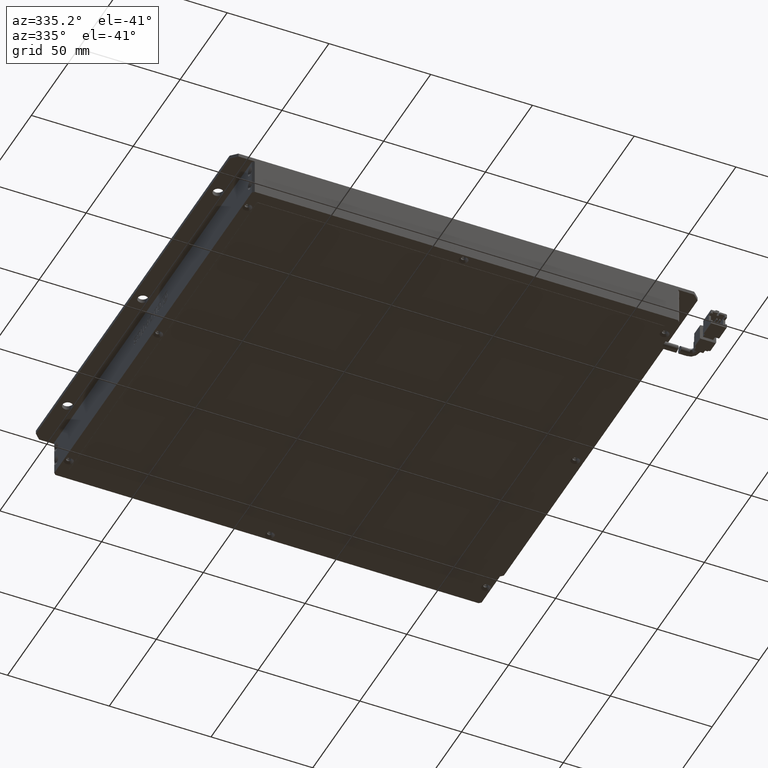
[diagram: clean part render]
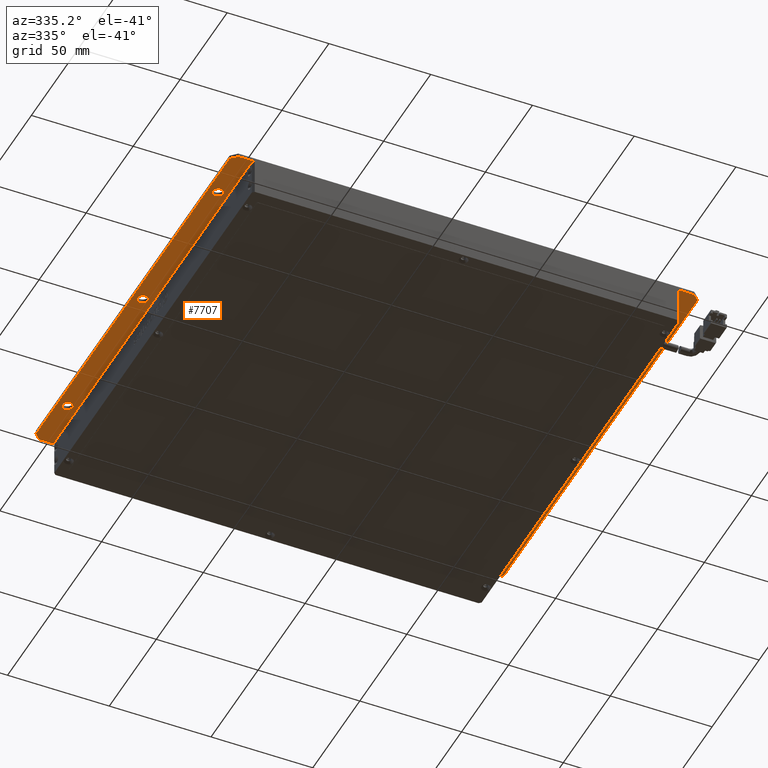
[diagram: same view with one face highlighted and labeled with its STEP entity id]
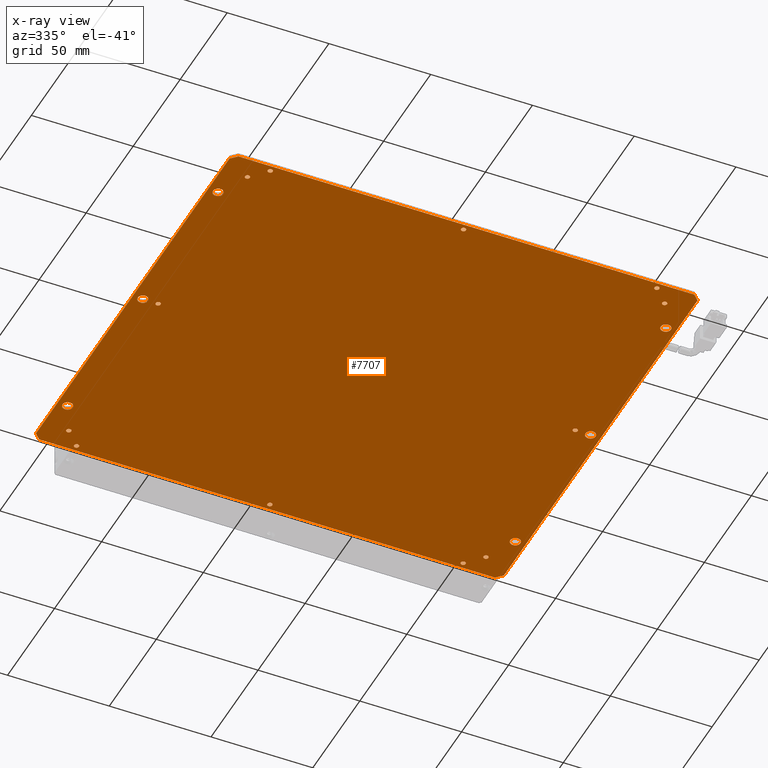
[diagram: x-ray of the same camera — body ghosted, the highlighted face saturated]
A machine part, auxiliary view. The second image highlights one B-rep face of the part: STEP entity #7707.
The next image is the same camera in x-ray: the body ghosted, the highlighted face saturated — about 0% of this face is hidden behind the body in this view.
In plain terms, the highlighted planar face has unit normal (0, -0, 1).
Its self-contained STEP definition (entity closure, byte-faithful):
#10 = VERTEX_POINT ( 'NONE', #6533 ) ;
#33 = ORIENTED_EDGE ( 'NONE', *, *, #4350, .F. ) ;
#70 = DIRECTION ( 'NONE',  ( 1.000000000000000000, 0.0000000000000000000, 0.0000000000000000000 ) ) ;
#94 = CIRCLE ( 'NONE', #3011, 1.200000000000006600 ) ;
#108 = CARTESIAN_POINT ( 'NONE',  ( -83.83424941752387800, -33.37875398278082900, -2.364644938190885200E-011 ) ) ;
#157 = DIRECTION ( 'NONE',  ( 0.0000000000000000000, 0.0000000000000000000, -1.000000000000000000 ) ) ;
#298 = FACE_BOUND ( 'NONE', #15271, .T. ) ;
#315 = CARTESIAN_POINT ( 'NONE',  ( -76.33424941752390700, -136.3787539827808100, -2.364644938190885200E-011 ) ) ;
#396 = ORIENTED_EDGE ( 'NONE', *, *, #17289, .F. ) ;
#415 = VERTEX_POINT ( 'NONE', #15167 ) ;
#418 = AXIS2_PLACEMENT_3D ( 'NONE', #9436, #21502, #11183 ) ;
#429 = EDGE_CURVE ( 'NONE', #18746, #20441, #21924, .T. ) ;
#433 = LINE ( 'NONE', #15159, #18309 ) ;
#441 = CARTESIAN_POINT ( 'NONE',  ( 133.6657505824760800, 72.62124601721916400, -2.364688306277784600E-011 ) ) ;
#462 = VERTEX_POINT ( 'NONE', #20274 ) ;
#574 = ORIENTED_EDGE ( 'NONE', *, *, #8481, .F. ) ;
#712 = VERTEX_POINT ( 'NONE', #819 ) ;
#765 = AXIS2_PLACEMENT_3D ( 'NONE', #8959, #21026, #10701 ) ;
#810 = VERTEX_POINT ( 'NONE', #5798 ) ;
#819 = CARTESIAN_POINT ( 'NONE',  ( 133.6657505824761400, -136.3787539827808100, -2.364753358408133700E-011 ) ) ;
#850 = CARTESIAN_POINT ( 'NONE',  ( -93.83424941752386400, -33.37875398278082900, -2.364688306277784600E-011 ) ) ;
#853 = FACE_OUTER_BOUND ( 'NONE', #13161, .T. ) ;
#941 = CARTESIAN_POINT ( 'NONE',  ( -76.33424941752390700, -136.3787539827808100, -2.364644938190885200E-011 ) ) ;
#945 = EDGE_CURVE ( 'NONE', #20982, #1541, #12476, .T. ) ;
#1104 = AXIS2_PLACEMENT_3D ( 'NONE', #3975, #2583, #2436 ) ;
#1111 = EDGE_CURVE ( 'NONE', #1541, #20982, #2944, .T. ) ;
#1220 = CARTESIAN_POINT ( 'NONE',  ( 121.1657505824761100, -128.3787539827808100, -2.364644938190885200E-011 ) ) ;
#1367 = AXIS2_PLACEMENT_3D ( 'NONE', #8718, #8963, #9031 ) ;
#1388 = CARTESIAN_POINT ( 'NONE',  ( -96.33424941752389300, 72.62124601721916400, -2.364688306277784600E-011 ) ) ;
#1541 = VERTEX_POINT ( 'NONE', #18598 ) ;
#1585 = AXIS2_PLACEMENT_3D ( 'NONE', #5328, #4863, #4468 ) ;
#1692 = DIRECTION ( 'NONE',  ( 1.000000000000000000, 0.0000000000000000000, 0.0000000000000000000 ) ) ;
#1715 = CIRCLE ( 'NONE', #19790, 1.199999999999992600 ) ;
#1731 = CARTESIAN_POINT ( 'NONE',  ( 133.6657505824761400, 72.62124601721916400, -2.364688306277784600E-011 ) ) ;
#1751 = CARTESIAN_POINT ( 'NONE',  ( 128.6657505824760500, 46.62124601721915000, -2.364688306277784600E-011 ) ) ;
#1780 = ORIENTED_EDGE ( 'NONE', *, *, #9634, .F. ) ;
#1798 = EDGE_CURVE ( 'NONE', #3124, #462, #4821, .T. ) ;
#1872 = DIRECTION ( 'NONE',  ( 1.000000000000000000, 0.0000000000000000000, 0.0000000000000000000 ) ) ;
#1968 = VERTEX_POINT ( 'NONE', #17401 ) ;
#2045 = DIRECTION ( 'NONE',  ( 0.0000000000000000000, 0.0000000000000000000, -1.000000000000000000 ) ) ;
#2049 = EDGE_CURVE ( 'NONE', #11515, #9138, #18052, .T. ) ;
#2087 = CARTESIAN_POINT ( 'NONE',  ( -93.33424941752387800, 72.62124601721916400, -2.364688306277784600E-011 ) ) ;
#2180 = EDGE_CURVE ( 'NONE', #21657, #19202, #18319, .T. ) ;
#2182 = DIRECTION ( 'NONE',  ( 1.000000000000000000, 0.0000000000000000000, -0.0000000000000000000 ) ) ;
#2292 = DIRECTION ( 'NONE',  ( 1.000000000000000000, 0.0000000000000000000, 0.0000000000000000000 ) ) ;
#2304 = CARTESIAN_POINT ( 'NONE',  ( 17.46575058247609700, -136.3787539827808600, -2.364644938190885200E-011 ) ) ;
#2327 = CARTESIAN_POINT ( 'NONE',  ( 133.6657505824760800, -139.3787539827808400, -2.364688306277784600E-011 ) ) ;
#2335 = ORIENTED_EDGE ( 'NONE', *, *, #5938, .F. ) ;
#2361 = DIRECTION ( 'NONE',  ( 0.0000000000000000000, 0.0000000000000000000, -1.000000000000000000 ) ) ;
#2436 = DIRECTION ( 'NONE',  ( 1.000000000000000000, 0.0000000000000000000, 0.0000000000000000000 ) ) ;
#2473 = EDGE_CURVE ( 'NONE', #4483, #21816, #11793, .T. ) ;
#2490 = AXIS2_PLACEMENT_3D ( 'NONE', #441, #12594, #2182 ) ;
#2499 = AXIS2_PLACEMENT_3D ( 'NONE', #108, #12303, #1872 ) ;
#2535 = CARTESIAN_POINT ( 'NONE',  ( 18.66575058247609000, -136.3787539827808600, -2.364644938190885200E-011 ) ) ;
#2583 = DIRECTION ( 'NONE',  ( 0.0000000000000000000, 0.0000000000000000000, -1.000000000000000000 ) ) ;
#2616 = CARTESIAN_POINT ( 'NONE',  ( 114.8657505824760800, 69.62124601721916400, -2.364644938190885200E-011 ) ) ;
#2664 = DIRECTION ( 'NONE',  ( 1.000000000000000000, 0.0000000000000000000, 0.0000000000000000000 ) ) ;
#2675 = EDGE_CURVE ( 'NONE', #17094, #18552, #20100, .T. ) ;
#2939 = DIRECTION ( 'NONE',  ( 1.000000000000000000, 0.0000000000000000000, 0.0000000000000000000 ) ) ;
#2943 = DIRECTION ( 'NONE',  ( 0.0000000000000000000, 0.0000000000000000000, -1.000000000000000000 ) ) ;
#2944 = CIRCLE ( 'NONE', #21566, 1.199999999999992600 ) ;
#3011 = AXIS2_PLACEMENT_3D ( 'NONE', #16987, #6628, #18745 ) ;
#3100 = EDGE_CURVE ( 'NONE', #6520, #18080, #11182, .T. ) ;
#3124 = VERTEX_POINT ( 'NONE', #2616 ) ;
#3166 = VERTEX_POINT ( 'NONE', #7115 ) ;
#3179 = CIRCLE ( 'NONE', #4276, 1.200000000000006600 ) ;
#3240 = CIRCLE ( 'NONE', #418, 1.200000000000006600 ) ;
#3304 = EDGE_CURVE ( 'NONE', #6352, #8873, #14693, .T. ) ;
#3445 = EDGE_CURVE ( 'NONE', #8106, #11884, #4059, .T. ) ;
#3497 = DIRECTION ( 'NONE',  ( 1.000000000000000000, 0.0000000000000000000, 0.0000000000000000000 ) ) ;
#3516 = CARTESIAN_POINT ( 'NONE',  ( 119.9657505824760500, 61.62124601721919200, -2.364644938190885200E-011 ) ) ;
#3537 = AXIS2_PLACEMENT_3D ( 'NONE', #315, #157, #70 ) ;
#3686 = VERTEX_POINT ( 'NONE', #11639 ) ;
#3755 = CIRCLE ( 'NONE', #5010, 1.199999999999992600 ) ;
#3823 = EDGE_CURVE ( 'NONE', #4505, #5966, #18675, .T. ) ;
#3836 = FACE_BOUND ( 'NONE', #19124, .T. ) ;
#3896 = CIRCLE ( 'NONE', #6179, 1.200000000000006600 ) ;
#3975 = CARTESIAN_POINT ( 'NONE',  ( 128.6657505824760500, -33.37875398278082900, -2.364688306277784600E-011 ) ) ;
#4006 = CIRCLE ( 'NONE', #9508, 1.200000000000006600 ) ;
#4059 = CIRCLE ( 'NONE', #5612, 1.200000000000006600 ) ;
#4101 = CARTESIAN_POINT ( 'NONE',  ( 126.1657505824760600, 46.62124601721915000, -2.364688306277784600E-011 ) ) ;
#4276 = AXIS2_PLACEMENT_3D ( 'NONE', #18028, #7668, #19753 ) ;
#4328 = DIRECTION ( 'NONE',  ( 0.0000000000000000000, 0.0000000000000000000, -1.000000000000000000 ) ) ;
#4350 = EDGE_CURVE ( 'NONE', #415, #5333, #20013, .T. ) ;
#4372 = FACE_BOUND ( 'NONE', #16969, .T. ) ;
#4448 = CARTESIAN_POINT ( 'NONE',  ( 114.8657505824761700, -136.3787539827808900, -2.364644938190885200E-011 ) ) ;
#4468 = DIRECTION ( 'NONE',  ( 1.000000000000000000, 0.0000000000000000000, 0.0000000000000000000 ) ) ;
#4483 = VERTEX_POINT ( 'NONE', #18728 ) ;
#4505 = VERTEX_POINT ( 'NONE', #8507 ) ;
#4596 = VERTEX_POINT ( 'NONE', #3516 ) ;
#4636 = AXIS2_PLACEMENT_3D ( 'NONE', #13967, #13892, #13811 ) ;
#4737 = LINE ( 'NONE', #2327, #13423 ) ;
#4821 = CIRCLE ( 'NONE', #1585, 1.200000000000006600 ) ;
#4863 = DIRECTION ( 'NONE',  ( 0.0000000000000000000, 0.0000000000000000000, -1.000000000000000000 ) ) ;
#4929 = FACE_BOUND ( 'NONE', #14467, .T. ) ;
#4970 = DIRECTION ( 'NONE',  ( 0.0000000000000000000, 0.0000000000000000000, -1.000000000000000000 ) ) ;
#4973 = AXIS2_PLACEMENT_3D ( 'NONE', #14735, #4328, #16439 ) ;
#5010 = AXIS2_PLACEMENT_3D ( 'NONE', #941, #13070, #2664 ) ;
#5107 = ORIENTED_EDGE ( 'NONE', *, *, #7905, .F. ) ;
#5198 = CARTESIAN_POINT ( 'NONE',  ( -96.33424941752389300, -136.3787539827808100, -2.364688306277784600E-011 ) ) ;
#5314 = CARTESIAN_POINT ( 'NONE',  ( 19.86575058247608200, -136.3787539827808600, -2.364644938190885200E-011 ) ) ;
#5328 = CARTESIAN_POINT ( 'NONE',  ( 113.6657505824760800, 69.62124601721916400, -2.364644938190885200E-011 ) ) ;
#5333 = VERTEX_POINT ( 'NONE', #10529 ) ;
#5354 = ORIENTED_EDGE ( 'NONE', *, *, #9306, .F. ) ;
#5358 = VERTEX_POINT ( 'NONE', #20849 ) ;
#5460 = EDGE_CURVE ( 'NONE', #7280, #3686, #12705, .T. ) ;
#5470 = AXIS2_PLACEMENT_3D ( 'NONE', #9991, #22047, #11747 ) ;
#5490 = CARTESIAN_POINT ( 'NONE',  ( 130.6657505824760500, 72.62124601721916400, -2.364753358408133700E-011 ) ) ;
#5597 = AXIS2_PLACEMENT_3D ( 'NONE', #20005, #9702, #21769 ) ;
#5612 = AXIS2_PLACEMENT_3D ( 'NONE', #11597, #13231, #9903 ) ;
#5653 = EDGE_CURVE ( 'NONE', #21107, #10, #18262, .T. ) ;
#5677 = AXIS2_PLACEMENT_3D ( 'NONE', #1751, #13916, #3497 ) ;
#5703 = ORIENTED_EDGE ( 'NONE', *, *, #22422, .F. ) ;
#5761 = LINE ( 'NONE', #1731, #14975 ) ;
#5798 = CARTESIAN_POINT ( 'NONE',  ( 130.6657505824761100, -139.3787539827808400, -2.364720832342959200E-011 ) ) ;
#5865 = ORIENTED_EDGE ( 'NONE', *, *, #3100, .F. ) ;
#5938 = EDGE_CURVE ( 'NONE', #1968, #4596, #3896, .T. ) ;
#5966 = VERTEX_POINT ( 'NONE', #6906 ) ;
#6005 = CARTESIAN_POINT ( 'NONE',  ( -88.83424941752387800, 46.62124601721917800, -2.364688306277784600E-011 ) ) ;
#6078 = CARTESIAN_POINT ( 'NONE',  ( -93.33424941752387800, 72.62124601721916400, -2.364753358408133700E-011 ) ) ;
#6101 = DIRECTION ( 'NONE',  ( 0.0000000000000000000, 0.0000000000000000000, -1.000000000000000000 ) ) ;
#6175 = CIRCLE ( 'NONE', #2499, 1.200000000000006600 ) ;
#6179 = AXIS2_PLACEMENT_3D ( 'NONE', #22403, #12109, #1692 ) ;
#6352 = VERTEX_POINT ( 'NONE', #13704 ) ;
#6426 = ORIENTED_EDGE ( 'NONE', *, *, #6881, .F. ) ;
#6437 = ORIENTED_EDGE ( 'NONE', *, *, #11648, .F. ) ;
#6474 = ORIENTED_EDGE ( 'NONE', *, *, #1111, .F. ) ;
#6520 = VERTEX_POINT ( 'NONE', #2304 ) ;
#6533 = CARTESIAN_POINT ( 'NONE',  ( 119.9657505824761000, -33.37875398278082900, -2.364644938190885200E-011 ) ) ;
#6615 = VERTEX_POINT ( 'NONE', #15947 ) ;
#6628 = DIRECTION ( 'NONE',  ( 0.0000000000000000000, 0.0000000000000000000, -1.000000000000000000 ) ) ;
#6671 = EDGE_LOOP ( 'NONE', ( #12432, #8066 ) ) ;
#6869 = AXIS2_PLACEMENT_3D ( 'NONE', #2535, #2361, #2292 ) ;
#6881 = EDGE_CURVE ( 'NONE', #11884, #8106, #15754, .T. ) ;
#6900 = DIRECTION ( 'NONE',  ( 0.7071067811865474600, -0.7071067811865474600, 0.0000000000000000000 ) ) ;
#6906 = CARTESIAN_POINT ( 'NONE',  ( -75.13424941752391800, -136.3787539827808100, -2.364644938190885200E-011 ) ) ;
#6933 = DIRECTION ( 'NONE',  ( 1.000000000000000000, 0.0000000000000000000, 0.0000000000000000000 ) ) ;
#6944 = EDGE_LOOP ( 'NONE', ( #11406, #11596 ) ) ;
#7010 = VERTEX_POINT ( 'NONE', #15296 ) ;
#7111 = DIRECTION ( 'NONE',  ( 0.0000000000000000000, 0.0000000000000000000, -1.000000000000000000 ) ) ;
#7115 = CARTESIAN_POINT ( 'NONE',  ( -93.33424941752387800, -139.3787539827808400, -2.364688306277784600E-011 ) ) ;
#7128 = LINE ( 'NONE', #1388, #16853 ) ;
#7179 = DIRECTION ( 'NONE',  ( 0.0000000000000000000, 0.0000000000000000000, -1.000000000000000000 ) ) ;
#7192 = CARTESIAN_POINT ( 'NONE',  ( 113.6657505824760800, 69.62124601721916400, -2.364644938190885200E-011 ) ) ;
#7211 = CARTESIAN_POINT ( 'NONE',  ( -83.83424941752389300, 61.62124601721919200, -2.364644938190885200E-011 ) ) ;
#7215 = ORIENTED_EDGE ( 'NONE', *, *, #2049, .F. ) ;
#7257 = EDGE_CURVE ( 'NONE', #18080, #6520, #21743, .T. ) ;
#7260 = ORIENTED_EDGE ( 'NONE', *, *, #20694, .F. ) ;
#7280 = VERTEX_POINT ( 'NONE', #6078 ) ;
#7377 = AXIS2_PLACEMENT_3D ( 'NONE', #19756, #9441, #21508 ) ;
#7393 = CARTESIAN_POINT ( 'NONE',  ( -75.13424941752391800, 69.62124601721916400, -2.364644938190885200E-011 ) ) ;
#7518 = ORIENTED_EDGE ( 'NONE', *, *, #3304, .F. ) ;
#7569 = EDGE_CURVE ( 'NONE', #712, #21657, #5761, .T. ) ;
#7668 = DIRECTION ( 'NONE',  ( 0.0000000000000000000, 0.0000000000000000000, -1.000000000000000000 ) ) ;
#7707 = ADVANCED_FACE ( 'NONE', ( #853, #10074, #15215, #18735, #14187, #9552, #4929, #298, #18183, #13611, #9016, #4372, #22220, #17644, #13055, #8442, #3836, #21696, #17085 ), #15997, .F. ) ;
#7778 = CIRCLE ( 'NONE', #9340, 2.500000000000002200 ) ;
#7852 = CARTESIAN_POINT ( 'NONE',  ( 113.6657505824761600, -136.3787539827808900, -2.364644938190885200E-011 ) ) ;
#7905 = EDGE_CURVE ( 'NONE', #6615, #5358, #11439, .T. ) ;
#8066 = ORIENTED_EDGE ( 'NONE', *, *, #12306, .F. ) ;
#8068 = ORIENTED_EDGE ( 'NONE', *, *, #16078, .F. ) ;
#8080 = VERTEX_POINT ( 'NONE', #13696 ) ;
#8096 = AXIS2_PLACEMENT_3D ( 'NONE', #12499, #12635, #12707 ) ;
#8106 = VERTEX_POINT ( 'NONE', #15417 ) ;
#8233 = CARTESIAN_POINT ( 'NONE',  ( 119.9657505824761000, -128.3787539827808100, -2.364644938190885200E-011 ) ) ;
#8284 = CARTESIAN_POINT ( 'NONE',  ( 130.6657505824761100, -139.3787539827808400, -2.364688306277784600E-011 ) ) ;
#8395 = EDGE_CURVE ( 'NONE', #5966, #4505, #3755, .T. ) ;
#8442 = FACE_BOUND ( 'NONE', #18780, .T. ) ;
#8473 = VECTOR ( 'NONE', #6900, 1000.000000000000100 ) ;
#8481 = EDGE_CURVE ( 'NONE', #5333, #415, #16188, .T. ) ;
#8507 = CARTESIAN_POINT ( 'NONE',  ( -77.53424941752391000, -136.3787539827808100, -2.364644938190885200E-011 ) ) ;
#8518 = CARTESIAN_POINT ( 'NONE',  ( -82.63424941752390400, 61.62124601721919200, -2.364644938190885200E-011 ) ) ;
#8629 = DIRECTION ( 'NONE',  ( 0.0000000000000000000, 0.0000000000000000000, -1.000000000000000000 ) ) ;
#8640 = ORIENTED_EDGE ( 'NONE', *, *, #22205, .F. ) ;
#8659 = ORIENTED_EDGE ( 'NONE', *, *, #2180, .F. ) ;
#8678 = ORIENTED_EDGE ( 'NONE', *, *, #17143, .F. ) ;
#8686 = DIRECTION ( 'NONE',  ( 0.0000000000000000000, 0.0000000000000000000, -1.000000000000000000 ) ) ;
#8718 = CARTESIAN_POINT ( 'NONE',  ( -91.33424941752386400, -113.3787539827808200, -2.364688306277784600E-011 ) ) ;
#8779 = CIRCLE ( 'NONE', #5677, 2.500000000000002200 ) ;
#8849 = ORIENTED_EDGE ( 'NONE', *, *, #2675, .F. ) ;
#8873 = VERTEX_POINT ( 'NONE', #20661 ) ;
#8916 = ORIENTED_EDGE ( 'NONE', *, *, #5460, .F. ) ;
#8957 = DIRECTION ( 'NONE',  ( 1.000000000000000000, 0.0000000000000000000, 0.0000000000000000000 ) ) ;
#8959 = CARTESIAN_POINT ( 'NONE',  ( -83.83424941752387800, -128.3787539827808100, -2.364644938190885200E-011 ) ) ;
#8963 = DIRECTION ( 'NONE',  ( 0.0000000000000000000, 0.0000000000000000000, -1.000000000000000000 ) ) ;
#9016 = FACE_BOUND ( 'NONE', #16355, .T. ) ;
#9031 = DIRECTION ( 'NONE',  ( 1.000000000000000000, 0.0000000000000000000, 0.0000000000000000000 ) ) ;
#9109 = DIRECTION ( 'NONE',  ( -0.7071067811865474600, 0.7071067811865474600, 0.0000000000000000000 ) ) ;
#9114 = ORIENTED_EDGE ( 'NONE', *, *, #11986, .F. ) ;
#9138 = VERTEX_POINT ( 'NONE', #850 ) ;
#9159 = ORIENTED_EDGE ( 'NONE', *, *, #2473, .F. ) ;
#9261 = EDGE_CURVE ( 'NONE', #19490, #8080, #11868, .T. ) ;
#9304 = DIRECTION ( 'NONE',  ( 0.0000000000000000000, 0.0000000000000000000, -1.000000000000000000 ) ) ;
#9306 = EDGE_CURVE ( 'NONE', #19202, #7280, #433, .T. ) ;
#9340 = AXIS2_PLACEMENT_3D ( 'NONE', #17465, #7111, #19217 ) ;
#9436 = CARTESIAN_POINT ( 'NONE',  ( 121.1657505824760500, 61.62124601721919200, -2.364644938190885200E-011 ) ) ;
#9441 = DIRECTION ( 'NONE',  ( 0.0000000000000000000, 0.0000000000000000000, -1.000000000000000000 ) ) ;
#9460 = ORIENTED_EDGE ( 'NONE', *, *, #14184, .F. ) ;
#9468 = CARTESIAN_POINT ( 'NONE',  ( 131.1657505824760800, 46.62124601721915000, -2.364688306277784600E-011 ) ) ;
#9479 = ORIENTED_EDGE ( 'NONE', *, *, #945, .F. ) ;
#9508 = AXIS2_PLACEMENT_3D ( 'NONE', #7192, #19288, #8957 ) ;
#9525 = CARTESIAN_POINT ( 'NONE',  ( 17.46575058247609700, 69.62124601721916400, -2.364644938190885200E-011 ) ) ;
#9552 = FACE_BOUND ( 'NONE', #13936, .T. ) ;
#9607 = DIRECTION ( 'NONE',  ( 1.000000000000000000, 0.0000000000000000000, 0.0000000000000000000 ) ) ;
#9634 = EDGE_CURVE ( 'NONE', #3166, #810, #4737, .T. ) ;
#9697 = CARTESIAN_POINT ( 'NONE',  ( 18.66575058247609000, 69.62124601721916400, -2.364644938190885200E-011 ) ) ;
#9702 = DIRECTION ( 'NONE',  ( 0.0000000000000000000, 0.0000000000000000000, -1.000000000000000000 ) ) ;
#9725 = ORIENTED_EDGE ( 'NONE', *, *, #21092, .F. ) ;
#9751 = AXIS2_PLACEMENT_3D ( 'NONE', #18982, #8629, #20693 ) ;
#9808 = AXIS2_PLACEMENT_3D ( 'NONE', #15331, #4970, #17059 ) ;
#9903 = DIRECTION ( 'NONE',  ( 1.000000000000000000, 0.0000000000000000000, 0.0000000000000000000 ) ) ;
#9942 = CARTESIAN_POINT ( 'NONE',  ( 133.6657505824760800, 69.62124601721916400, -2.364688306277784600E-011 ) ) ;
#9950 = ORIENTED_EDGE ( 'NONE', *, *, #19677, .F. ) ;
#9953 = EDGE_CURVE ( 'NONE', #20441, #18746, #8779, .T. ) ;
#9991 = CARTESIAN_POINT ( 'NONE',  ( 18.66575058247609000, 69.62124601721916400, -2.364644938190885200E-011 ) ) ;
#10074 = FACE_BOUND ( 'NONE', #20203, .T. ) ;
#10174 = CARTESIAN_POINT ( 'NONE',  ( -88.83424941752386400, -33.37875398278082900, -2.364688306277784600E-011 ) ) ;
#10506 = ORIENTED_EDGE ( 'NONE', *, *, #3823, .F. ) ;
#10513 = AXIS2_PLACEMENT_3D ( 'NONE', #7211, #7179, #6933 ) ;
#10528 = ORIENTED_EDGE ( 'NONE', *, *, #13416, .F. ) ;
#10529 = CARTESIAN_POINT ( 'NONE',  ( 131.1657505824760800, -33.37875398278082900, -2.364688306277784600E-011 ) ) ;
#10573 = ORIENTED_EDGE ( 'NONE', *, *, #1798, .F. ) ;
#10701 = DIRECTION ( 'NONE',  ( 1.000000000000000000, 0.0000000000000000000, 0.0000000000000000000 ) ) ;
#10753 = DIRECTION ( 'NONE',  ( -0.7071067811865474600, -0.7071067811865474600, 0.0000000000000000000 ) ) ;
#10766 = ORIENTED_EDGE ( 'NONE', *, *, #14223, .F. ) ;
#10835 = ORIENTED_EDGE ( 'NONE', *, *, #8395, .F. ) ;
#11039 = AXIS2_PLACEMENT_3D ( 'NONE', #12471, #2045, #14218 ) ;
#11182 = CIRCLE ( 'NONE', #6869, 1.199999999999992600 ) ;
#11183 = DIRECTION ( 'NONE',  ( 1.000000000000000000, 0.0000000000000000000, 0.0000000000000000000 ) ) ;
#11194 = CIRCLE ( 'NONE', #16094, 1.200000000000006600 ) ;
#11248 = EDGE_CURVE ( 'NONE', #18552, #17094, #16364, .T. ) ;
#11339 = ORIENTED_EDGE ( 'NONE', *, *, #11248, .F. ) ;
#11364 = ORIENTED_EDGE ( 'NONE', *, *, #7257, .F. ) ;
#11406 = ORIENTED_EDGE ( 'NONE', *, *, #9261, .F. ) ;
#11439 = CIRCLE ( 'NONE', #5597, 2.500000000000002200 ) ;
#11453 = DIRECTION ( 'NONE',  ( 1.000000000000000000, 0.0000000000000000000, 0.0000000000000000000 ) ) ;
#11515 = VERTEX_POINT ( 'NONE', #10174 ) ;
#11596 = ORIENTED_EDGE ( 'NONE', *, *, #18349, .F. ) ;
#11597 = CARTESIAN_POINT ( 'NONE',  ( 121.1657505824761100, -128.3787539827808100, -2.364644938190885200E-011 ) ) ;
#11598 = ORIENTED_EDGE ( 'NONE', *, *, #3445, .F. ) ;
#11639 = CARTESIAN_POINT ( 'NONE',  ( -96.33424941752389300, 69.62124601721916400, -2.364753358408133700E-011 ) ) ;
#11648 = EDGE_CURVE ( 'NONE', #8873, #6352, #17493, .T. ) ;
#11664 = ORIENTED_EDGE ( 'NONE', *, *, #18785, .F. ) ;
#11747 = DIRECTION ( 'NONE',  ( 1.000000000000000000, 0.0000000000000000000, 0.0000000000000000000 ) ) ;
#11793 = CIRCLE ( 'NONE', #13247, 1.200000000000006600 ) ;
#11803 = CIRCLE ( 'NONE', #9751, 2.500000000000002200 ) ;
#11868 = CIRCLE ( 'NONE', #22116, 1.200000000000006600 ) ;
#11884 = VERTEX_POINT ( 'NONE', #8233 ) ;
#11986 = EDGE_CURVE ( 'NONE', #15337, #13199, #11803, .T. ) ;
#12109 = DIRECTION ( 'NONE',  ( 0.0000000000000000000, 0.0000000000000000000, -1.000000000000000000 ) ) ;
#12176 = VECTOR ( 'NONE', #10753, 1000.000000000000100 ) ;
#12303 = DIRECTION ( 'NONE',  ( 0.0000000000000000000, 0.0000000000000000000, -1.000000000000000000 ) ) ;
#12306 = EDGE_CURVE ( 'NONE', #10, #21107, #94, .T. ) ;
#12432 = ORIENTED_EDGE ( 'NONE', *, *, #5653, .F. ) ;
#12471 = CARTESIAN_POINT ( 'NONE',  ( -91.33424941752386400, -113.3787539827808200, -2.364688306277784600E-011 ) ) ;
#12476 = CIRCLE ( 'NONE', #8096, 1.199999999999992600 ) ;
#12499 = CARTESIAN_POINT ( 'NONE',  ( -76.33424941752390700, 69.62124601721916400, -2.364644938190885200E-011 ) ) ;
#12562 = CARTESIAN_POINT ( 'NONE',  ( -82.63424941752387600, -33.37875398278082900, -2.364644938190885200E-011 ) ) ;
#12594 = DIRECTION ( 'NONE',  ( 0.0000000000000000000, -0.0000000000000000000, 1.000000000000000000 ) ) ;
#12635 = DIRECTION ( 'NONE',  ( 0.0000000000000000000, 0.0000000000000000000, -1.000000000000000000 ) ) ;
#12705 = LINE ( 'NONE', #2087, #12176 ) ;
#12707 = DIRECTION ( 'NONE',  ( 1.000000000000000000, 0.0000000000000000000, 0.0000000000000000000 ) ) ;
#12808 = ORIENTED_EDGE ( 'NONE', *, *, #9953, .F. ) ;
#12813 = AXIS2_PLACEMENT_3D ( 'NONE', #1220, #13348, #2939 ) ;
#13035 = CARTESIAN_POINT ( 'NONE',  ( -85.03424941752388100, -128.3787539827808100, -2.364644938190885200E-011 ) ) ;
#13055 = FACE_BOUND ( 'NONE', #18214, .T. ) ;
#13070 = DIRECTION ( 'NONE',  ( 0.0000000000000000000, 0.0000000000000000000, -1.000000000000000000 ) ) ;
#13081 = LINE ( 'NONE', #5198, #8473 ) ;
#13161 = EDGE_LOOP ( 'NONE', ( #8659, #20480, #16685, #1780, #396, #8678, #8916, #5354 ) ) ;
#13187 = VECTOR ( 'NONE', #9109, 1000.000000000000100 ) ;
#13199 = VERTEX_POINT ( 'NONE', #21718 ) ;
#13231 = DIRECTION ( 'NONE',  ( 0.0000000000000000000, 0.0000000000000000000, -1.000000000000000000 ) ) ;
#13247 = AXIS2_PLACEMENT_3D ( 'NONE', #20234, #20148, #20080 ) ;
#13348 = DIRECTION ( 'NONE',  ( 0.0000000000000000000, 0.0000000000000000000, -1.000000000000000000 ) ) ;
#13355 = CARTESIAN_POINT ( 'NONE',  ( 113.6657505824761600, -136.3787539827808900, -2.364644938190885200E-011 ) ) ;
#13416 = EDGE_CURVE ( 'NONE', #21816, #4483, #17324, .T. ) ;
#13423 = VECTOR ( 'NONE', #16203, 1000.000000000000000 ) ;
#13524 = DIRECTION ( 'NONE',  ( -0.0000000000000000000, -1.000000000000000000, -0.0000000000000000000 ) ) ;
#13611 = FACE_BOUND ( 'NONE', #16690, .T. ) ;
#13696 = CARTESIAN_POINT ( 'NONE',  ( 112.4657505824761500, -136.3787539827808900, -2.364644938190885200E-011 ) ) ;
#13704 = CARTESIAN_POINT ( 'NONE',  ( -93.83424941752386400, -113.3787539827808200, -2.364688306277784600E-011 ) ) ;
#13811 = DIRECTION ( 'NONE',  ( 1.000000000000000000, 0.0000000000000000000, 0.0000000000000000000 ) ) ;
#13875 = CARTESIAN_POINT ( 'NONE',  ( -85.03424941752388100, -33.37875398278082900, -2.364644938190885200E-011 ) ) ;
#13886 = DIRECTION ( 'NONE',  ( 0.0000000000000000000, 1.000000000000000000, 0.0000000000000000000 ) ) ;
#13892 = DIRECTION ( 'NONE',  ( 0.0000000000000000000, 0.0000000000000000000, -1.000000000000000000 ) ) ;
#13916 = DIRECTION ( 'NONE',  ( 0.0000000000000000000, 0.0000000000000000000, -1.000000000000000000 ) ) ;
#13936 = EDGE_LOOP ( 'NONE', ( #11364, #5865 ) ) ;
#13967 = CARTESIAN_POINT ( 'NONE',  ( -91.33424941752386400, -33.37875398278082900, -2.364688306277784600E-011 ) ) ;
#14073 = AXIS2_PLACEMENT_3D ( 'NONE', #14219, #16536, #16600 ) ;
#14184 = EDGE_CURVE ( 'NONE', #19625, #21002, #6175, .T. ) ;
#14187 = FACE_BOUND ( 'NONE', #6944, .T. ) ;
#14188 = ORIENTED_EDGE ( 'NONE', *, *, #429, .F. ) ;
#14192 = EDGE_LOOP ( 'NONE', ( #2335, #11664 ) ) ;
#14218 = DIRECTION ( 'NONE',  ( 1.000000000000000000, 0.0000000000000000000, 0.0000000000000000000 ) ) ;
#14219 = CARTESIAN_POINT ( 'NONE',  ( 128.6657505824760500, 46.62124601721915000, -2.364688306277784600E-011 ) ) ;
#14223 = EDGE_CURVE ( 'NONE', #462, #3124, #4006, .T. ) ;
#14395 = CARTESIAN_POINT ( 'NONE',  ( 19.86575058247608200, 69.62124601721916400, -2.364644938190885200E-011 ) ) ;
#14467 = EDGE_LOOP ( 'NONE', ( #10835, #10506 ) ) ;
#14603 = CARTESIAN_POINT ( 'NONE',  ( 122.3657505824761200, -33.37875398278082900, -2.364644938190885200E-011 ) ) ;
#14693 = CIRCLE ( 'NONE', #1367, 2.500000000000002200 ) ;
#14735 = CARTESIAN_POINT ( 'NONE',  ( 18.66575058247609000, -136.3787539827808600, -2.364644938190885200E-011 ) ) ;
#14975 = VECTOR ( 'NONE', #13886, 1000.000000000000000 ) ;
#15088 = DIRECTION ( 'NONE',  ( 1.000000000000000000, 0.0000000000000000000, 0.0000000000000000000 ) ) ;
#15159 = CARTESIAN_POINT ( 'NONE',  ( 133.6657505824760800, 72.62124601721916400, -2.364688306277784600E-011 ) ) ;
#15167 = CARTESIAN_POINT ( 'NONE',  ( 126.1657505824760600, -33.37875398278082900, -2.364688306277784600E-011 ) ) ;
#15215 = FACE_BOUND ( 'NONE', #6671, .T. ) ;
#15271 = EDGE_LOOP ( 'NONE', ( #9159, #10528 ) ) ;
#15296 = CARTESIAN_POINT ( 'NONE',  ( -96.33424941752389300, -136.3787539827808400, -2.364688306277784600E-011 ) ) ;
#15331 = CARTESIAN_POINT ( 'NONE',  ( 128.6657505824760500, -113.3787539827808200, -2.364688306277784600E-011 ) ) ;
#15337 = VERTEX_POINT ( 'NONE', #6005 ) ;
#15417 = CARTESIAN_POINT ( 'NONE',  ( 122.3657505824761200, -128.3787539827808100, -2.364644938190885200E-011 ) ) ;
#15532 = LINE ( 'NONE', #8284, #20084 ) ;
#15559 = CIRCLE ( 'NONE', #16640, 2.500000000000002200 ) ;
#15754 = CIRCLE ( 'NONE', #12813, 1.200000000000006600 ) ;
#15947 = CARTESIAN_POINT ( 'NONE',  ( 131.1657505824760800, -113.3787539827808200, -2.364688306277784600E-011 ) ) ;
#15997 = PLANE ( 'NONE',  #2490 ) ;
#16078 = EDGE_CURVE ( 'NONE', #16984, #21006, #17748, .T. ) ;
#16089 = EDGE_LOOP ( 'NONE', ( #9725, #9460 ) ) ;
#16094 = AXIS2_PLACEMENT_3D ( 'NONE', #7852, #19922, #9607 ) ;
#16188 = CIRCLE ( 'NONE', #22375, 2.500000000000002200 ) ;
#16203 = DIRECTION ( 'NONE',  ( 1.000000000000000000, 0.0000000000000000000, -0.0000000000000000000 ) ) ;
#16355 = EDGE_LOOP ( 'NONE', ( #9479, #6474 ) ) ;
#16364 = CIRCLE ( 'NONE', #7377, 1.199999999999992600 ) ;
#16439 = DIRECTION ( 'NONE',  ( 1.000000000000000000, 0.0000000000000000000, 0.0000000000000000000 ) ) ;
#16471 = CARTESIAN_POINT ( 'NONE',  ( 121.1657505824761100, -33.37875398278082900, -2.364644938190885200E-011 ) ) ;
#16536 = DIRECTION ( 'NONE',  ( 0.0000000000000000000, 0.0000000000000000000, -1.000000000000000000 ) ) ;
#16600 = DIRECTION ( 'NONE',  ( 1.000000000000000000, 0.0000000000000000000, 0.0000000000000000000 ) ) ;
#16640 = AXIS2_PLACEMENT_3D ( 'NONE', #19037, #8686, #20748 ) ;
#16685 = ORIENTED_EDGE ( 'NONE', *, *, #16701, .F. ) ;
#16690 = EDGE_LOOP ( 'NONE', ( #11339, #8849 ) ) ;
#16701 = EDGE_CURVE ( 'NONE', #810, #712, #15532, .T. ) ;
#16853 = VECTOR ( 'NONE', #13524, 1000.000000000000000 ) ;
#16969 = EDGE_LOOP ( 'NONE', ( #10573, #10766 ) ) ;
#16984 = VERTEX_POINT ( 'NONE', #9525 ) ;
#16987 = CARTESIAN_POINT ( 'NONE',  ( 121.1657505824761100, -33.37875398278082900, -2.364644938190885200E-011 ) ) ;
#17059 = DIRECTION ( 'NONE',  ( 1.000000000000000000, 0.0000000000000000000, 0.0000000000000000000 ) ) ;
#17085 = FACE_BOUND ( 'NONE', #19407, .T. ) ;
#17094 = VERTEX_POINT ( 'NONE', #20049 ) ;
#17143 = EDGE_CURVE ( 'NONE', #3686, #7010, #7128, .T. ) ;
#17289 = EDGE_CURVE ( 'NONE', #7010, #3166, #13081, .T. ) ;
#17324 = CIRCLE ( 'NONE', #765, 1.200000000000006600 ) ;
#17401 = CARTESIAN_POINT ( 'NONE',  ( 122.3657505824760700, 61.62124601721919200, -2.364644938190885200E-011 ) ) ;
#17465 = CARTESIAN_POINT ( 'NONE',  ( -91.33424941752386400, -33.37875398278082900, -2.364688306277784600E-011 ) ) ;
#17478 = AXIS2_PLACEMENT_3D ( 'NONE', #16471, #6101, #18203 ) ;
#17492 = EDGE_LOOP ( 'NONE', ( #8640, #8068 ) ) ;
#17493 = CIRCLE ( 'NONE', #11039, 2.500000000000002200 ) ;
#17639 = CARTESIAN_POINT ( 'NONE',  ( 133.6657505824761100, 69.62124601721913600, -2.364720832342959200E-011 ) ) ;
#17644 = FACE_BOUND ( 'NONE', #18270, .T. ) ;
#17748 = CIRCLE ( 'NONE', #5470, 1.199999999999992600 ) ;
#18028 = CARTESIAN_POINT ( 'NONE',  ( -83.83424941752387800, -33.37875398278082900, -2.364644938190885200E-011 ) ) ;
#18052 = CIRCLE ( 'NONE', #4636, 2.500000000000002200 ) ;
#18080 = VERTEX_POINT ( 'NONE', #5314 ) ;
#18183 = FACE_BOUND ( 'NONE', #16089, .T. ) ;
#18203 = DIRECTION ( 'NONE',  ( 1.000000000000000000, 0.0000000000000000000, 0.0000000000000000000 ) ) ;
#18214 = EDGE_LOOP ( 'NONE', ( #7215, #9950 ) ) ;
#18262 = CIRCLE ( 'NONE', #17478, 1.200000000000006600 ) ;
#18270 = EDGE_LOOP ( 'NONE', ( #9114, #5703 ) ) ;
#18309 = VECTOR ( 'NONE', #20340, 1000.000000000000000 ) ;
#18319 = LINE ( 'NONE', #9942, #13187 ) ;
#18349 = EDGE_CURVE ( 'NONE', #8080, #19490, #11194, .T. ) ;
#18552 = VERTEX_POINT ( 'NONE', #8518 ) ;
#18598 = CARTESIAN_POINT ( 'NONE',  ( -77.53424941752391000, 69.62124601721916400, -2.364644938190885200E-011 ) ) ;
#18667 = DIRECTION ( 'NONE',  ( 0.7071067811865474600, 0.7071067811865474600, 0.0000000000000000000 ) ) ;
#18675 = CIRCLE ( 'NONE', #3537, 1.199999999999992600 ) ;
#18728 = CARTESIAN_POINT ( 'NONE',  ( -82.63424941752387600, -128.3787539827808100, -2.364644938190885200E-011 ) ) ;
#18735 = FACE_BOUND ( 'NONE', #14192, .T. ) ;
#18745 = DIRECTION ( 'NONE',  ( 1.000000000000000000, 0.0000000000000000000, 0.0000000000000000000 ) ) ;
#18746 = VERTEX_POINT ( 'NONE', #4101 ) ;
#18780 = EDGE_LOOP ( 'NONE', ( #6437, #7518 ) ) ;
#18785 = EDGE_CURVE ( 'NONE', #4596, #1968, #3240, .T. ) ;
#18982 = CARTESIAN_POINT ( 'NONE',  ( -91.33424941752387800, 46.62124601721917800, -2.364688306277784600E-011 ) ) ;
#19037 = CARTESIAN_POINT ( 'NONE',  ( -91.33424941752387800, 46.62124601721917800, -2.364688306277784600E-011 ) ) ;
#19124 = EDGE_LOOP ( 'NONE', ( #5107, #7260 ) ) ;
#19202 = VERTEX_POINT ( 'NONE', #5490 ) ;
#19217 = DIRECTION ( 'NONE',  ( 1.000000000000000000, 0.0000000000000000000, 0.0000000000000000000 ) ) ;
#19288 = DIRECTION ( 'NONE',  ( 0.0000000000000000000, 0.0000000000000000000, -1.000000000000000000 ) ) ;
#19407 = EDGE_LOOP ( 'NONE', ( #12808, #14188 ) ) ;
#19490 = VERTEX_POINT ( 'NONE', #4448 ) ;
#19623 = CARTESIAN_POINT ( 'NONE',  ( 128.6657505824760500, -33.37875398278082900, -2.364688306277784600E-011 ) ) ;
#19625 = VERTEX_POINT ( 'NONE', #13875 ) ;
#19629 = EDGE_LOOP ( 'NONE', ( #574, #33 ) ) ;
#19677 = EDGE_CURVE ( 'NONE', #9138, #11515, #7778, .T. ) ;
#19753 = DIRECTION ( 'NONE',  ( 1.000000000000000000, 0.0000000000000000000, 0.0000000000000000000 ) ) ;
#19756 = CARTESIAN_POINT ( 'NONE',  ( -83.83424941752389300, 61.62124601721919200, -2.364644938190885200E-011 ) ) ;
#19790 = AXIS2_PLACEMENT_3D ( 'NONE', #9697, #21763, #11453 ) ;
#19922 = DIRECTION ( 'NONE',  ( 0.0000000000000000000, 0.0000000000000000000, -1.000000000000000000 ) ) ;
#20005 = CARTESIAN_POINT ( 'NONE',  ( 128.6657505824760500, -113.3787539827808200, -2.364688306277784600E-011 ) ) ;
#20013 = CIRCLE ( 'NONE', #1104, 2.500000000000002200 ) ;
#20049 = CARTESIAN_POINT ( 'NONE',  ( -85.03424941752388100, 61.62124601721919200, -2.364644938190885200E-011 ) ) ;
#20080 = DIRECTION ( 'NONE',  ( 1.000000000000000000, 0.0000000000000000000, 0.0000000000000000000 ) ) ;
#20084 = VECTOR ( 'NONE', #18667, 1000.000000000000100 ) ;
#20100 = CIRCLE ( 'NONE', #10513, 1.199999999999992600 ) ;
#20148 = DIRECTION ( 'NONE',  ( 0.0000000000000000000, 0.0000000000000000000, -1.000000000000000000 ) ) ;
#20203 = EDGE_LOOP ( 'NONE', ( #11598, #6426 ) ) ;
#20234 = CARTESIAN_POINT ( 'NONE',  ( -83.83424941752387800, -128.3787539827808100, -2.364644938190885200E-011 ) ) ;
#20274 = CARTESIAN_POINT ( 'NONE',  ( 112.4657505824760800, 69.62124601721916400, -2.364644938190885200E-011 ) ) ;
#20340 = DIRECTION ( 'NONE',  ( -1.000000000000000000, -0.0000000000000000000, 0.0000000000000000000 ) ) ;
#20441 = VERTEX_POINT ( 'NONE', #9468 ) ;
#20480 = ORIENTED_EDGE ( 'NONE', *, *, #7569, .F. ) ;
#20661 = CARTESIAN_POINT ( 'NONE',  ( -88.83424941752386400, -113.3787539827808200, -2.364688306277784600E-011 ) ) ;
#20693 = DIRECTION ( 'NONE',  ( 1.000000000000000000, 0.0000000000000000000, 0.0000000000000000000 ) ) ;
#20694 = EDGE_CURVE ( 'NONE', #5358, #6615, #20821, .T. ) ;
#20748 = DIRECTION ( 'NONE',  ( 1.000000000000000000, 0.0000000000000000000, 0.0000000000000000000 ) ) ;
#20821 = CIRCLE ( 'NONE', #9808, 2.500000000000002200 ) ;
#20849 = CARTESIAN_POINT ( 'NONE',  ( 126.1657505824760600, -113.3787539827808200, -2.364688306277784600E-011 ) ) ;
#20982 = VERTEX_POINT ( 'NONE', #7393 ) ;
#21002 = VERTEX_POINT ( 'NONE', #12562 ) ;
#21006 = VERTEX_POINT ( 'NONE', #14395 ) ;
#21026 = DIRECTION ( 'NONE',  ( 0.0000000000000000000, 0.0000000000000000000, -1.000000000000000000 ) ) ;
#21092 = EDGE_CURVE ( 'NONE', #21002, #19625, #3179, .T. ) ;
#21107 = VERTEX_POINT ( 'NONE', #14603 ) ;
#21371 = DIRECTION ( 'NONE',  ( 1.000000000000000000, 0.0000000000000000000, 0.0000000000000000000 ) ) ;
#21502 = DIRECTION ( 'NONE',  ( 0.0000000000000000000, 0.0000000000000000000, -1.000000000000000000 ) ) ;
#21508 = DIRECTION ( 'NONE',  ( 1.000000000000000000, 0.0000000000000000000, 0.0000000000000000000 ) ) ;
#21566 = AXIS2_PLACEMENT_3D ( 'NONE', #21963, #22034, #22113 ) ;
#21657 = VERTEX_POINT ( 'NONE', #17639 ) ;
#21696 = FACE_BOUND ( 'NONE', #19629, .T. ) ;
#21718 = CARTESIAN_POINT ( 'NONE',  ( -93.83424941752387800, 46.62124601721917800, -2.364688306277784600E-011 ) ) ;
#21743 = CIRCLE ( 'NONE', #4973, 1.199999999999992600 ) ;
#21763 = DIRECTION ( 'NONE',  ( 0.0000000000000000000, 0.0000000000000000000, -1.000000000000000000 ) ) ;
#21769 = DIRECTION ( 'NONE',  ( 1.000000000000000000, 0.0000000000000000000, 0.0000000000000000000 ) ) ;
#21816 = VERTEX_POINT ( 'NONE', #13035 ) ;
#21924 = CIRCLE ( 'NONE', #14073, 2.500000000000002200 ) ;
#21963 = CARTESIAN_POINT ( 'NONE',  ( -76.33424941752390700, 69.62124601721916400, -2.364644938190885200E-011 ) ) ;
#22034 = DIRECTION ( 'NONE',  ( 0.0000000000000000000, 0.0000000000000000000, -1.000000000000000000 ) ) ;
#22047 = DIRECTION ( 'NONE',  ( 0.0000000000000000000, 0.0000000000000000000, -1.000000000000000000 ) ) ;
#22113 = DIRECTION ( 'NONE',  ( 1.000000000000000000, 0.0000000000000000000, 0.0000000000000000000 ) ) ;
#22116 = AXIS2_PLACEMENT_3D ( 'NONE', #13355, #2943, #15088 ) ;
#22205 = EDGE_CURVE ( 'NONE', #21006, #16984, #1715, .T. ) ;
#22220 = FACE_BOUND ( 'NONE', #17492, .T. ) ;
#22375 = AXIS2_PLACEMENT_3D ( 'NONE', #19623, #9304, #21371 ) ;
#22403 = CARTESIAN_POINT ( 'NONE',  ( 121.1657505824760500, 61.62124601721919200, -2.364644938190885200E-011 ) ) ;
#22422 = EDGE_CURVE ( 'NONE', #13199, #15337, #15559, .T. ) ;